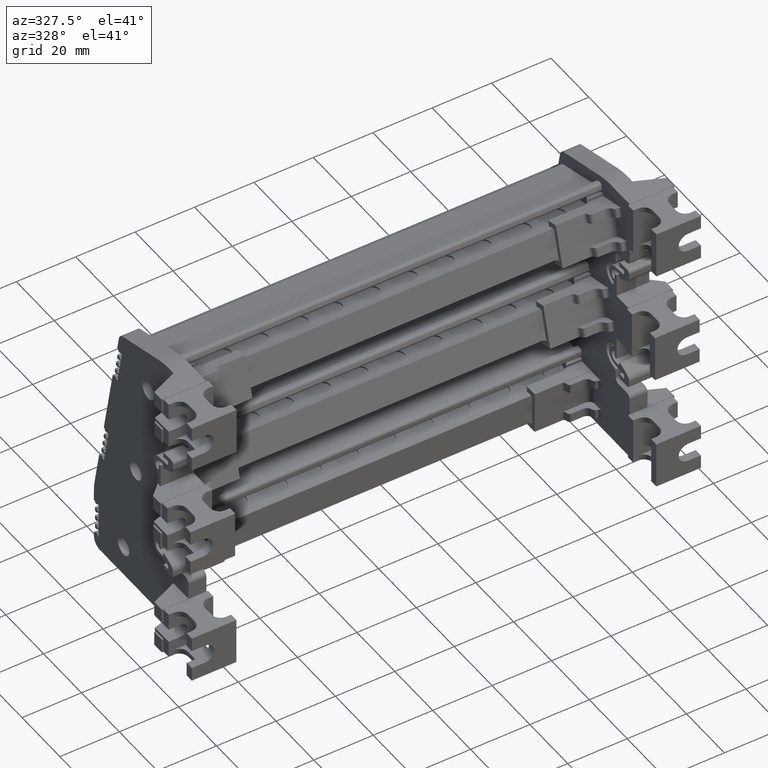
[diagram: clean part render]
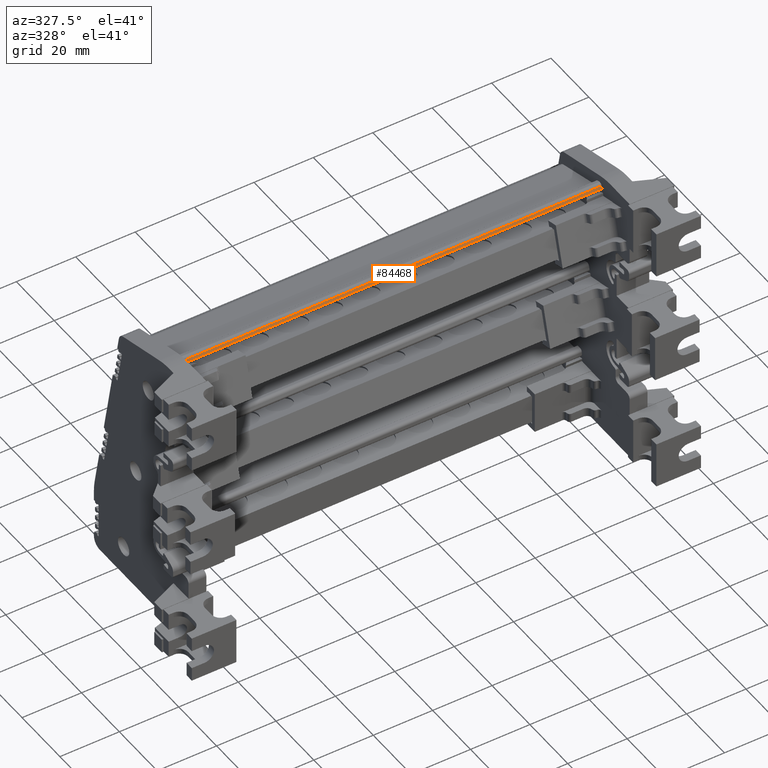
[diagram: same view with one face highlighted and labeled with its STEP entity id]
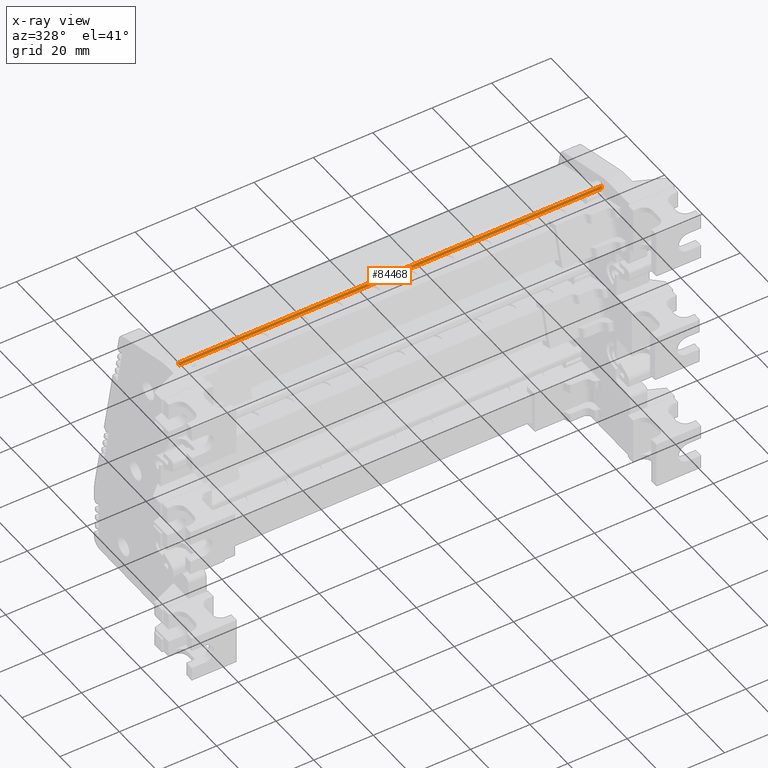
[diagram: x-ray of the same camera — body ghosted, the highlighted face saturated]
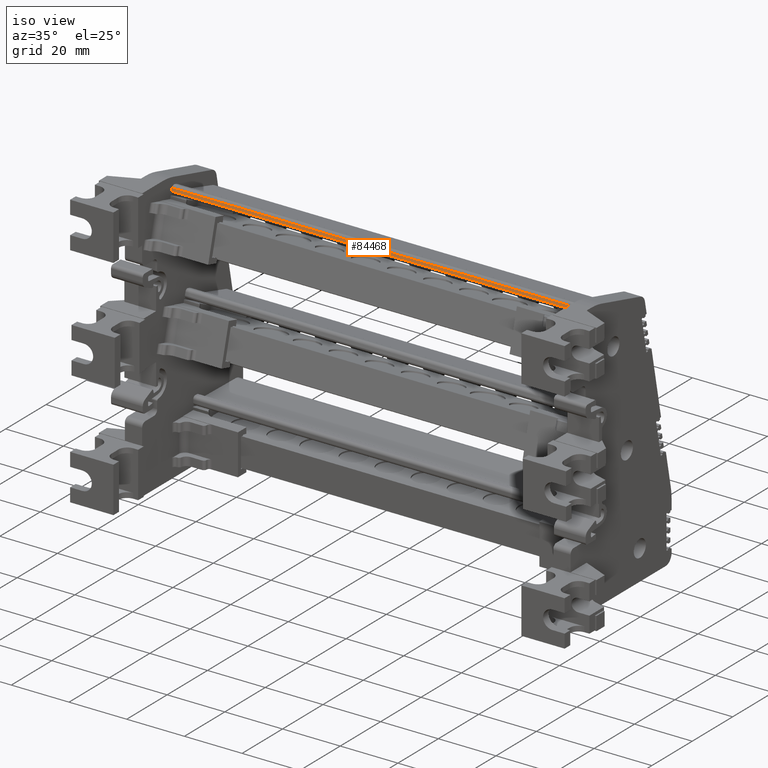
[diagram: same view with one face highlighted and labeled with its STEP entity id]
A machine part, auxiliary view. The second image highlights one B-rep face of the part: STEP entity #84468.
The next image is the same camera in x-ray: the body ghosted, the highlighted face saturated — about 0% of this face is hidden behind the body in this view.
A second angle (iso view) of the same face is appended — the face is thin or edge-on in the first view.
In plain terms, the highlighted planar face has unit normal (0, 0.9659, -0.2588).
Its self-contained STEP definition (entity closure, byte-faithful):
#17044 = PLANE ( 'NONE',  #107194 ) ;
#17046 = CARTESIAN_POINT ( 'NONE',  ( 12.17005696747471100, 245.6256914685254700, 14.28770861835705700 ) ) ;
#17054 = FACE_OUTER_BOUND ( 'NONE', #91757, .T. ) ;
#17055 = DIRECTION ( 'NONE',  ( 9.665489847987398900E-015, 0.9659261637494112000, -0.2588177856800914500 ) ) ;
#17065 = DIRECTION ( 'NONE',  ( 0.0000000000000000000, 0.2588177856800913900, 0.9659261637494110900 ) ) ;
#19597 = VECTOR ( 'NONE', #65659, 1000.000000000000000 ) ;
#19736 = VECTOR ( 'NONE', #65764, 1000.000000000000000 ) ;
#19790 = VECTOR ( 'NONE', #65672, 1000.000000000000100 ) ;
#38991 = EDGE_CURVE ( 'NONE', #62831, #62914, #47906, .T. ) ;
#47906 = LINE ( 'NONE', #47911, #103581 ) ;
#47907 = DIRECTION ( 'NONE',  ( 1.000000000000000000, -9.336149529625346400E-015, 2.501600679969502000E-015 ) ) ;
#47911 = CARTESIAN_POINT ( 'NONE',  ( 12.17005696747471100, 254.3272526974187400, 46.76254659894492200 ) ) ;
#61007 = ORIENTED_EDGE ( 'NONE', *, *, #97299, .F. ) ;
#61008 = ORIENTED_EDGE ( 'NONE', *, *, #38991, .F. ) ;
#61043 = ORIENTED_EDGE ( 'NONE', *, *, #97254, .F. ) ;
#61044 = ORIENTED_EDGE ( 'NONE', *, *, #97246, .F. ) ;
#61317 = VERTEX_POINT ( 'NONE', #94820 ) ;
#61391 = VERTEX_POINT ( 'NONE', #94947 ) ;
#62831 = VERTEX_POINT ( 'NONE', #98438 ) ;
#62914 = VERTEX_POINT ( 'NONE', #98588 ) ;
#65634 = LINE ( 'NONE', #65646, #19597 ) ;
#65646 = CARTESIAN_POINT ( 'NONE',  ( 44.19805696747479100, 254.0718395256312200, 45.80932669349213900 ) ) ;
#65659 = DIRECTION ( 'NONE',  ( 7.031388172784195800E-015, -0.2588177856802163500, -0.9659261637493776800 ) ) ;
#65669 = LINE ( 'NONE', #65670, #19790 ) ;
#65670 = CARTESIAN_POINT ( 'NONE',  ( -98.30194303252656600, 254.3272526974198500, 46.76254659894461700 ) ) ;
#65672 = DIRECTION ( 'NONE',  ( -0.0000000000000000000, 0.2588177856801530100, 0.9659261637493946600 ) ) ;
#65736 = LINE ( 'NONE', #65771, #19736 ) ;
#65764 = DIRECTION ( 'NONE',  ( -1.000000000000000000, 8.490997600938255900E-015, -5.655767068175815700E-015 ) ) ;
#65771 = CARTESIAN_POINT ( 'NONE',  ( 12.17005696747458500, 254.0718395256312800, 45.80932669349201100 ) ) ;
#84468 = ADVANCED_FACE ( 'NONE', ( #17054 ), #17044, .F. ) ;
#91757 = EDGE_LOOP ( 'NONE', ( #61044, #61008, #61043, #61007 ) ) ;
#94820 = CARTESIAN_POINT ( 'NONE',  ( -98.30194303252656600, 254.0718394807827000, 45.80932652610924500 ) ) ;
#94947 = CARTESIAN_POINT ( 'NONE',  ( 44.19805696747477700, 254.0718394807814800, 45.80932652611008400 ) ) ;
#97246 = EDGE_CURVE ( 'NONE', #62914, #61391, #65634, .T. ) ;
#97254 = EDGE_CURVE ( 'NONE', #61317, #62831, #65669, .T. ) ;
#97299 = EDGE_CURVE ( 'NONE', #61391, #61317, #65736, .T. ) ;
#98438 = CARTESIAN_POINT ( 'NONE',  ( -98.30194303252656600, 254.3272526525701700, 46.76254643156254100 ) ) ;
#98588 = CARTESIAN_POINT ( 'NONE',  ( 44.19805696747479100, 254.3272526525689400, 46.76254643156313800 ) ) ;
#103581 = VECTOR ( 'NONE', #47907, 1000.000000000000000 ) ;
#107194 = AXIS2_PLACEMENT_3D ( 'NONE', #17046, #17055, #17065 ) ;